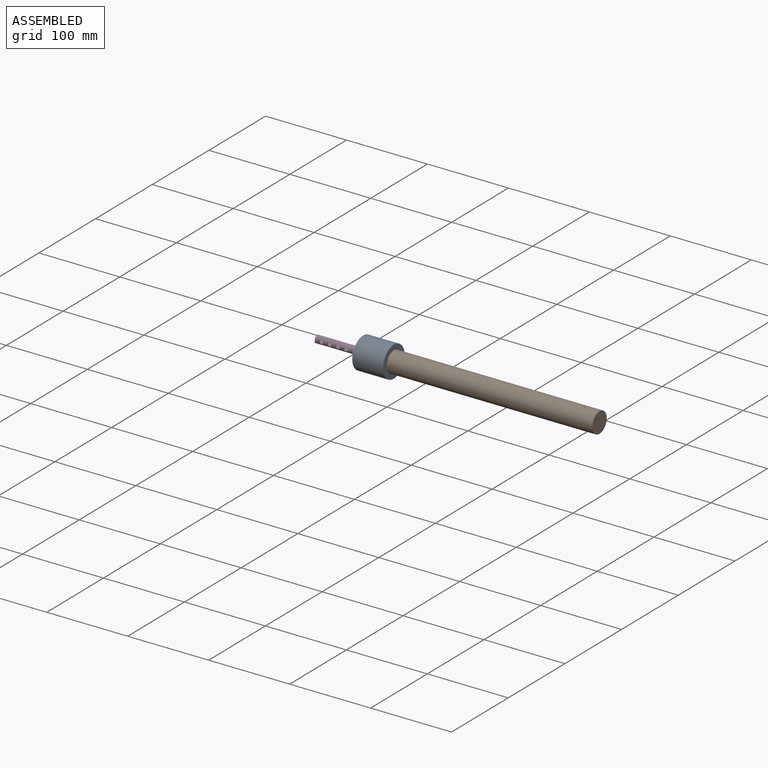
[diagram: assembled view]
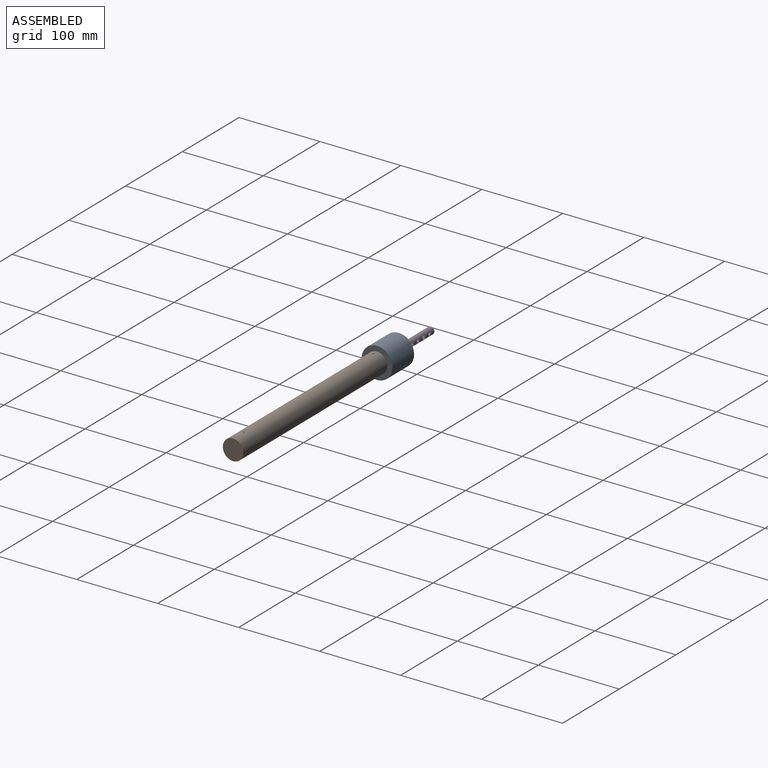
[diagram: assembled view, second angle]
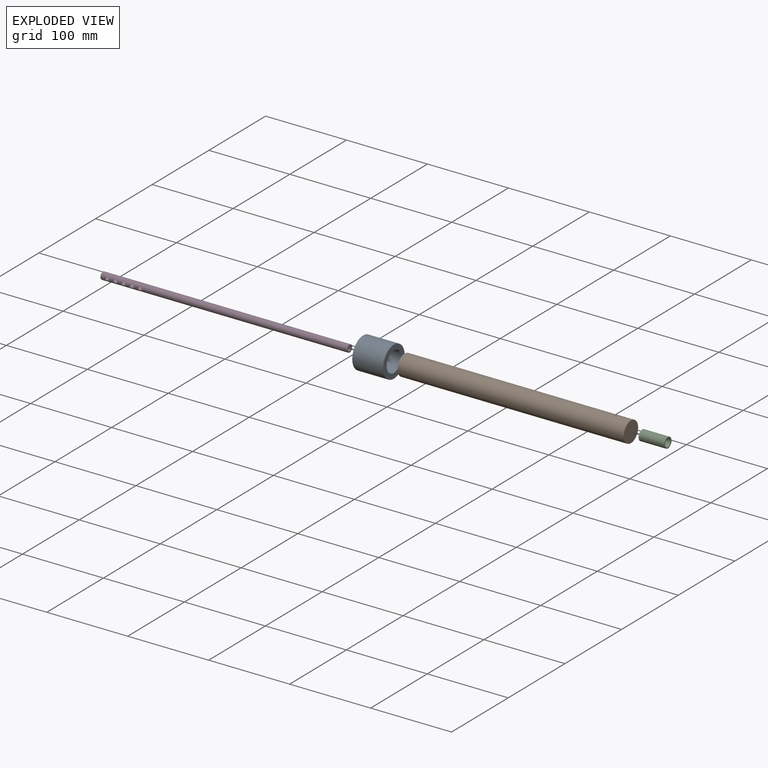
[diagram: exploded view]
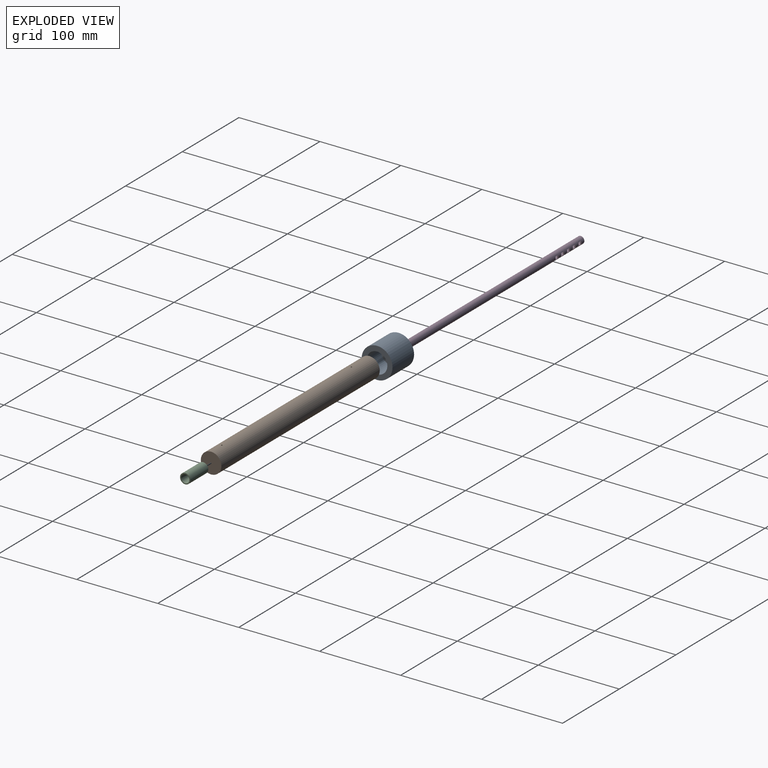
[diagram: exploded view, second angle]
ASSEMBLY  parts=4 mates=3
PART A: 6 faces, bbox 38.1x38.1x38.1 mm
  f0: cylinder r=12.7mm len=25.4mm, axis (-1,0,0), area 2026.8mm2, adj f2,f5
  f1: cylinder r=19.05mm len=38.1mm, axis (-1,0,0), area 4560.4mm2, adj f2,f3
  f2: plane 38.1x38.1mm, normal (1,0,0), area 633.4mm2, adj f0,f1
  f3: plane 38.1x38.1mm, normal (-1,0,0), area 1078mm2, adj f1,f4
  f4: cylinder r=4.45mm len=12.7mm, axis (-1,0,0), area 354.7mm2, adj f3,f5
  f5: plane 25.4x25.4mm, normal (1,0,0), area 444.6mm2, adj f0,f4
PART B: 7 faces, bbox 25.4x279.4x25.4 mm
  f0: cylinder r=12.7mm len=279.4mm, axis (0,-1,0), area 22291.1mm2, adj f1,f3,f5,f6
  f1: plane 25.4x25.4mm, normal (0,-1,0), area 506.7mm2, adj f0
  f2: cylinder r=6.35mm len=266.7mm, axis (0,-1,0), area 10636.9mm2, adj f3,f4,f5,f6
  f3: plane 25.4x25.4mm, normal (0,1,0), area 380mm2, adj f0,f2
  f4: plane 12.7x12.7mm, normal (0,1,0), area 126.7mm2, adj f2
  f5: cylinder r=0.79mm len=6.4mm, axis (1,0,0), area 31.7mm2, adj f0,f2
  f6: cylinder r=0.79mm len=6.4mm, axis (1,0,0), area 31.7mm2, adj f0,f2
PART C: 6 faces, bbox 12.7x31.8x12.7 mm
  f0: plane 8.89x8.89mm, normal (0,1,0), area 36.6mm2, adj f3,f4
  f1: cylinder r=6.35mm len=31.75mm, axis (0,-1,0), area 1266.8mm2, adj f2,f5
  f2: plane 12.7x12.7mm, normal (0,-1,0), area 45.6mm2, adj f1,f3
  f3: cone r=5.08mm half-angle=6.7deg, axis (0,-1,0), area 477.5mm2, adj f0,f2
  f4: cylinder r=4.45mm len=12.7mm, axis (0,-1,0), area 354.7mm2, adj f0,f5
  f5: plane 12.7x12.7mm, normal (0,1,0), area 64.6mm2, adj f1,f4
PART D: 44 faces, bbox 304.8x8.9x8.9 mm
  f0: cylinder r=2.84mm len=304.8mm, axis (1,0,0), area 5253mm2, adj f2,f3,f4,f5,f6,f7,f8,f9
  f1: cylinder r=4.45mm len=304.8mm, axis (1,0,0), area 8326.8mm2, adj f2,f3,f4,f5,f6,f7,f8,f9
  f2: plane 8.89x8.89mm, normal (1,0,0), area 36.6mm2, adj f0,f1
  f3: plane 8.89x8.89mm, normal (-1,0,0), area 36.6mm2, adj f0,f1
  f4: plane 5.08x1.85mm, normal (0,0,1), area 9.4mm2, adj f0,f1,f5,f7
  f5: plane 3.56x2.24mm, normal (1,0,0), area 6mm2, adj f0,f1,f4,f6
  f6: plane 5.08x1.86mm, normal (0,0,-1), area 9.4mm2, adj f0,f1,f5,f7
  f7: plane 3.56x2.23mm, normal (-1,0,0), area 6mm2, adj f0,f1,f4,f6
  f8: plane 3.56x2.23mm, normal (-1,0,0), area 6mm2, adj f0,f1,f9,f11
  f9: plane 5.08x1.86mm, normal (0,0,-1), area 9.4mm2, adj f0,f1,f8,f10
  f10: plane 3.56x2.24mm, normal (1,0,0), area 6mm2, adj f0,f1,f9,f11
  f11: plane 5.08x1.85mm, normal (0,0,1), area 9.4mm2, adj f0,f1,f8,f10
  f12: plane 5.08x1.86mm, normal (0,0,1), area 9.4mm2, adj f0,f1,f13,f15
  f13: plane 3.56x2.23mm, normal (1,0,0), area 6mm2, adj f0,f1,f12,f14
  f14: plane 5.08x1.86mm, normal (0,0,-1), area 9.4mm2, adj f0,f1,f13,f15
  f15: plane 3.56x2.23mm, normal (-1,0,0), area 6mm2, adj f0,f1,f12,f14
  f16: plane 3.56x2.23mm, normal (-1,0,0), area 6mm2, adj f0,f1,f17,f19
  f17: plane 5.08x1.86mm, normal (0,0,-1), area 9.4mm2, adj f0,f1,f16,f18
  f18: plane 3.56x2.23mm, normal (1,0,0), area 6mm2, adj f0,f1,f17,f19
  f19: plane 5.08x1.86mm, normal (0,0,1), area 9.4mm2, adj f0,f1,f16,f18
  f20: plane 5.08x1.86mm, normal (0,0,-1), area 9.4mm2, adj f0,f1,f21,f23
  f21: plane 3.56x2.23mm, normal (-1,0,0), area 6mm2, adj f0,f1,f20,f22
  f22: plane 5.08x1.86mm, normal (0,0,1), area 9.4mm2, adj f0,f1,f21,f23
  f23: plane 3.56x2.23mm, normal (1,0,0), area 6mm2, adj f0,f1,f20,f22
  f24: plane 3.56x2.23mm, normal (1,0,0), area 6mm2, adj f0,f1,f25,f27
  f25: plane 5.08x1.86mm, normal (0,0,1), area 9.4mm2, adj f0,f1,f24,f26
  f26: plane 3.56x2.23mm, normal (-1,0,0), area 6mm2, adj f0,f1,f25,f27
  f27: plane 5.08x1.86mm, normal (0,0,-1), area 9.4mm2, adj f0,f1,f24,f26
  f28: plane 5.08x1.85mm, normal (0,0,-1), area 9.4mm2, adj f0,f1,f29,f31
  f29: plane 3.56x2.23mm, normal (-1,0,0), area 6mm2, adj f0,f1,f28,f30
  f30: plane 5.08x1.86mm, normal (0,0,1), area 9.4mm2, adj f0,f1,f29,f31
  f31: plane 3.56x2.23mm, normal (1,0,0), area 6mm2, adj f0,f1,f28,f30
  f32: plane 3.56x2.23mm, normal (1,0,0), area 6mm2, adj f0,f1,f33,f35
  f33: plane 5.08x1.86mm, normal (0,0,1), area 9.4mm2, adj f0,f1,f32,f34
  f34: plane 3.56x2.23mm, normal (-1,0,0), area 6mm2, adj f0,f1,f33,f35
  f35: plane 5.08x1.85mm, normal (0,0,-1), area 9.4mm2, adj f0,f1,f32,f34
  f36: plane 3.56x2.24mm, normal (-1,0,0), area 6mm2, adj f0,f1,f37,f39
  f37: plane 5.08x1.86mm, normal (0,0,1), area 9.4mm2, adj f0,f1,f36,f38
  f38: plane 3.56x2.24mm, normal (1,0,0), area 6mm2, adj f0,f1,f37,f39
  f39: plane 5.08x1.85mm, normal (0,0,-1), area 9.4mm2, adj f0,f1,f36,f38
  f40: plane 5.08x1.85mm, normal (0,0,-1), area 9.4mm2, adj f0,f1,f41,f43
  f41: plane 3.56x2.24mm, normal (1,0,0), area 6mm2, adj f0,f1,f40,f42
  f42: plane 5.08x1.86mm, normal (0,0,1), area 9.4mm2, adj f0,f1,f41,f43
  f43: plane 3.56x2.24mm, normal (-1,0,0), area 6mm2, adj f0,f1,f40,f42
PLACE A t=(-95.07,50.94,36.46)mm
PLACE B rot(axis=(-0.58,0.58,0.58),120deg) t=(197.03,50.94,36.46)mm fixed
PLACE C rot(axis=(-0.58,0.58,0.58),120deg) t=(172.14,50.94,36.46)mm
PLACE D t=(153.09,50.94,36.46)mm
MATE fastened A.f0 <-> B.f0  axis (1,0,0) through (-82.37,50.94,36.46)mm
MATE fastened C.f1 <-> D.f0  axis (-1,0,0) through (153.09,50.94,36.46)mm
MATE slider D.f0 <-> A.f0  axis (1,0,0) through (0.69,50.94,36.46)mm
